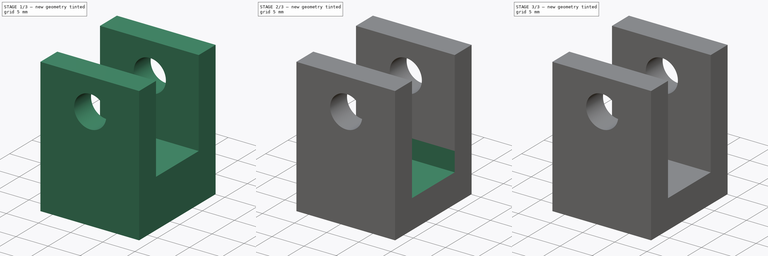
[diagram: build sequence overview — one tinted view per stage of 3, left to right]
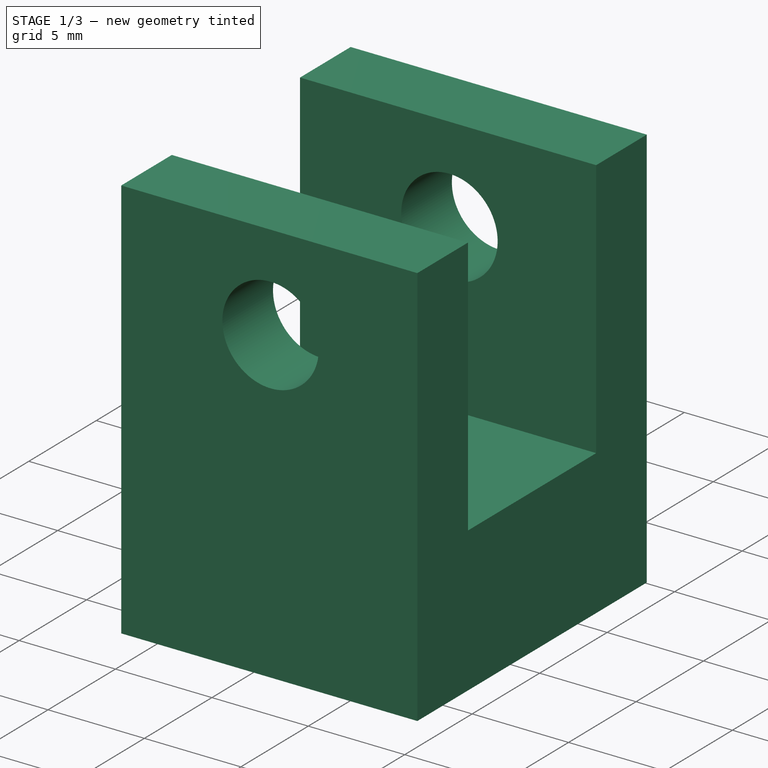
[diagram: stage 1 of 3 — iso view after this stage's code; geometry added in this stage tinted green]
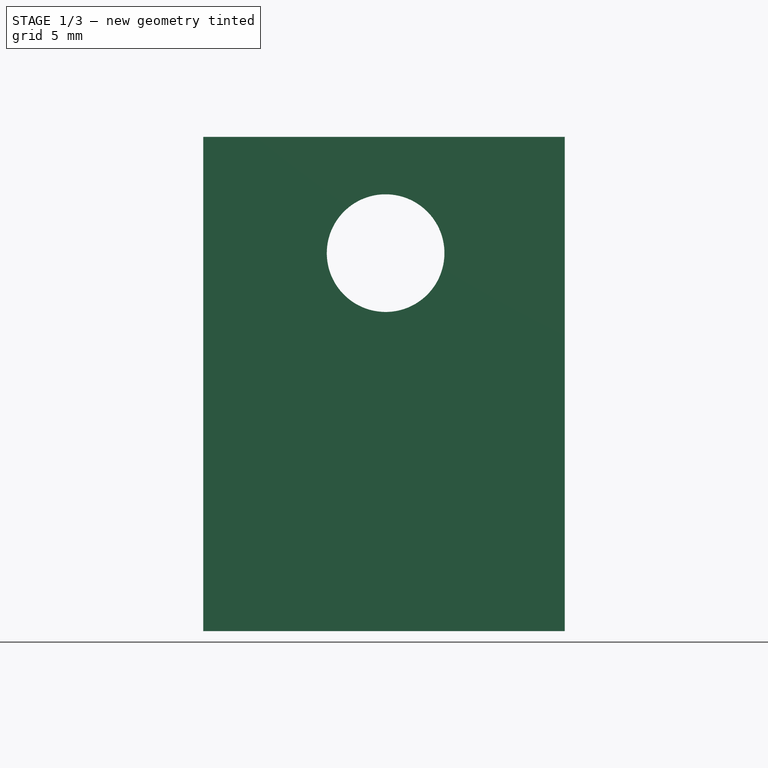
[diagram: stage 1 of 3 — front view after this stage's code; geometry added in this stage tinted green]
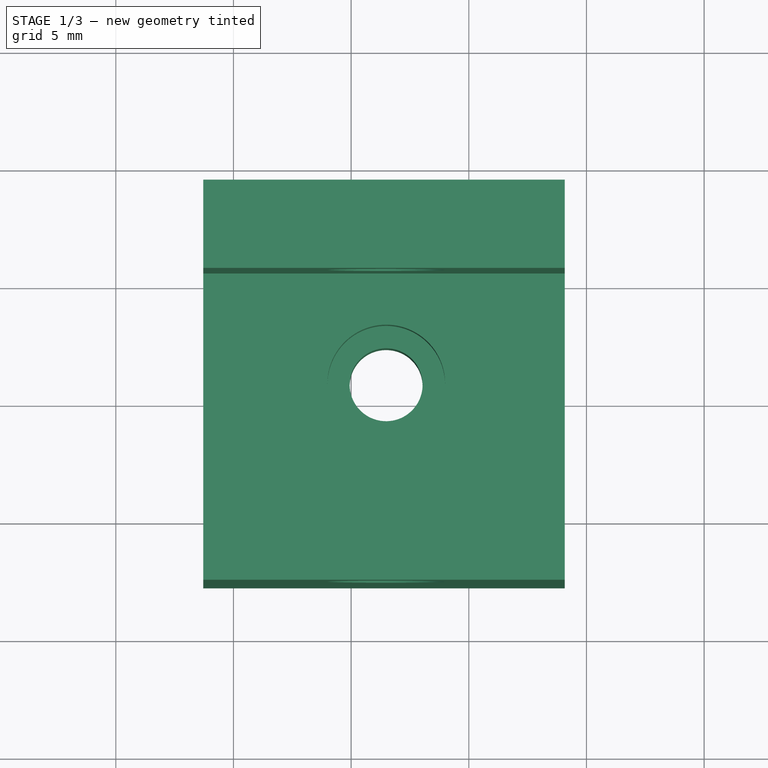
[diagram: stage 1 of 3 — top view after this stage's code; geometry added in this stage tinted green]
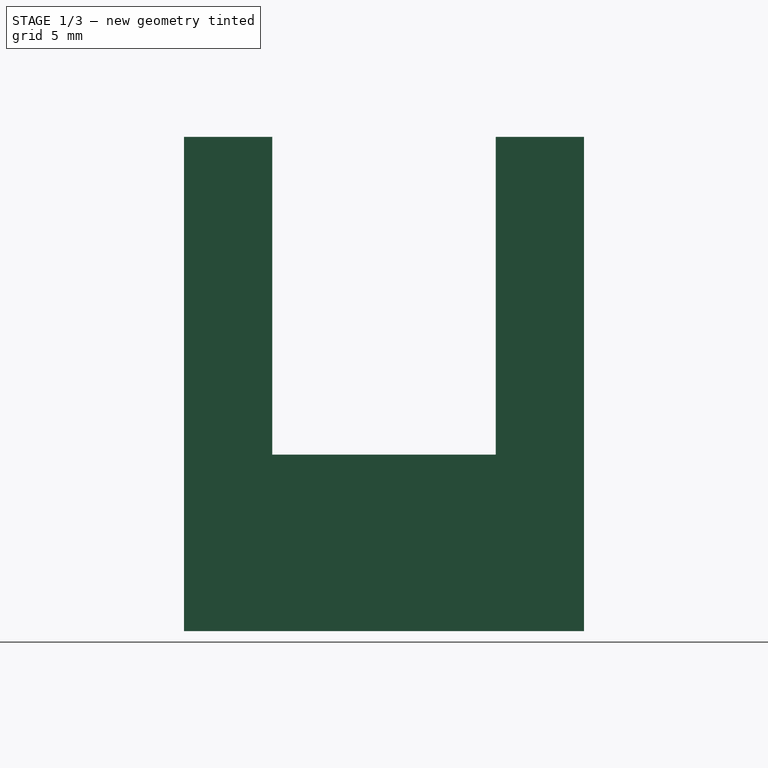
[diagram: stage 1 of 3 — right view after this stage's code; geometry added in this stage tinted green]
FCSTD DOCUMENT  (FreeCAD 2024.2R37179 (Git))
Label: idler_holder
License: All rights reserved
LicenseURL: http://en.wikipedia.org/wiki/All_rights_reserved
objects: PartDesign::Pocket×3, PartDesign::Pad×2, Part::Feature×1, PartDesign::FeatureBase×1, Sketcher::SketchObject×1, PartDesign::Body×1
note: 14 computed .brp shape members not serialized (recipe doc carries the construction recipe); baked Part::Feature solids carry a one-line shape summary decoded from their .brp

FEATURE [Part::Feature] Pocket020
  shape: bbox 15.36 x 17 x 18 mm, 20 faces (baked)
FEATURE [PartDesign::FeatureBase] BaseFeature
  BaseFeature = -> Pocket020
  Suppressed = false
FEATURE [PartDesign::Pad] Pad
  BaseFeature = -> BaseFeature
  Direction = (0,0,-1)
  Length = 3
  Length2 = 10
  Profile = -> BaseFeature [Face1]
  Suppressed = false
  Type = 0
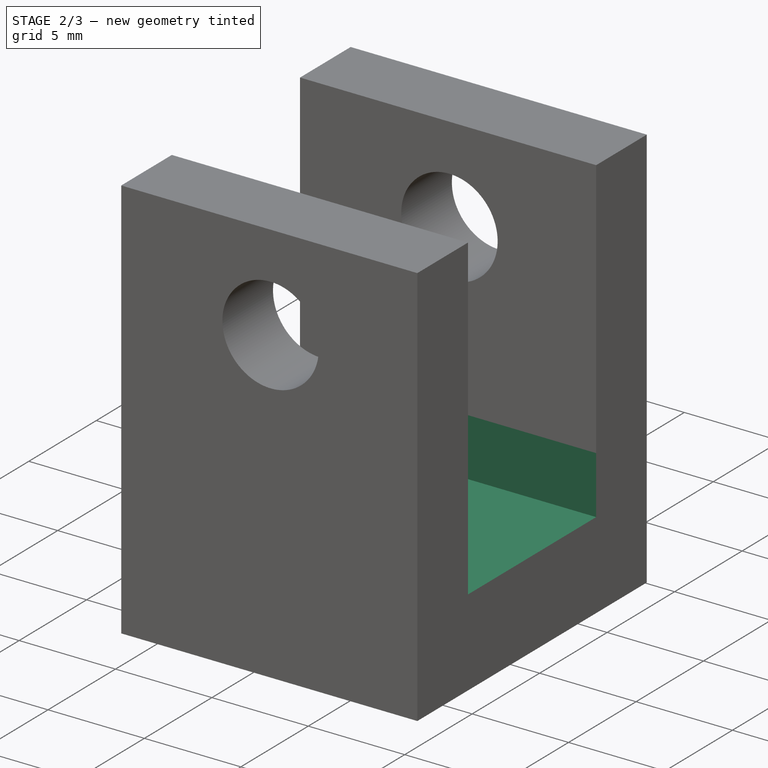
[diagram: stage 2 of 3 — iso view after this stage's code; geometry added in this stage tinted green]
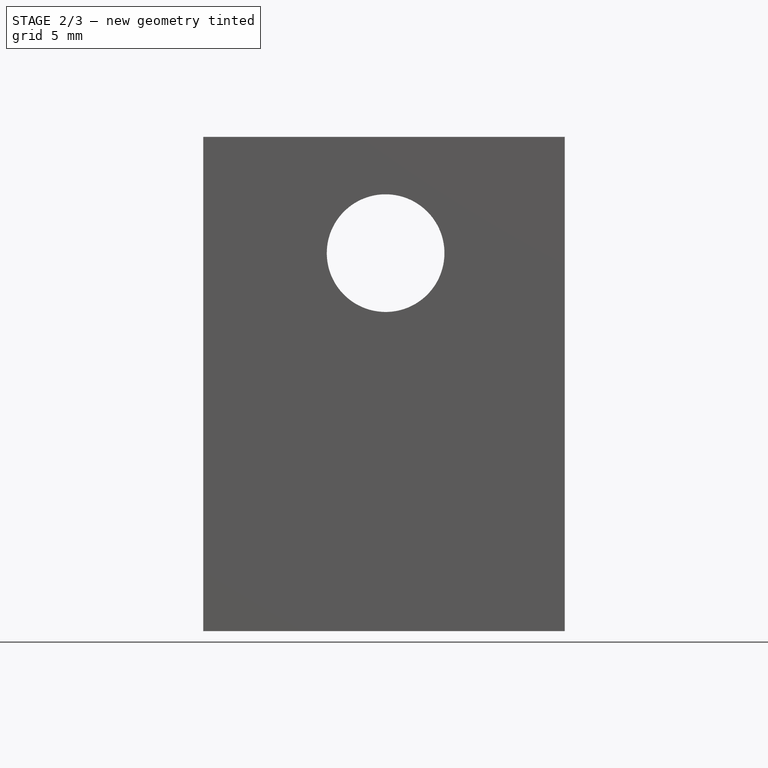
[diagram: stage 2 of 3 — front view after this stage's code; geometry added in this stage tinted green]
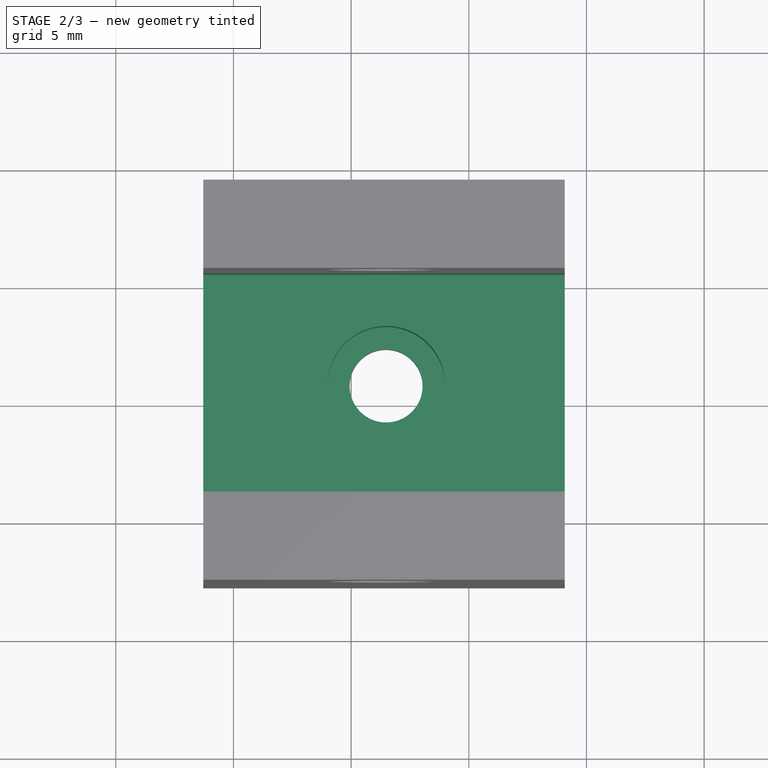
[diagram: stage 2 of 3 — top view after this stage's code; geometry added in this stage tinted green]
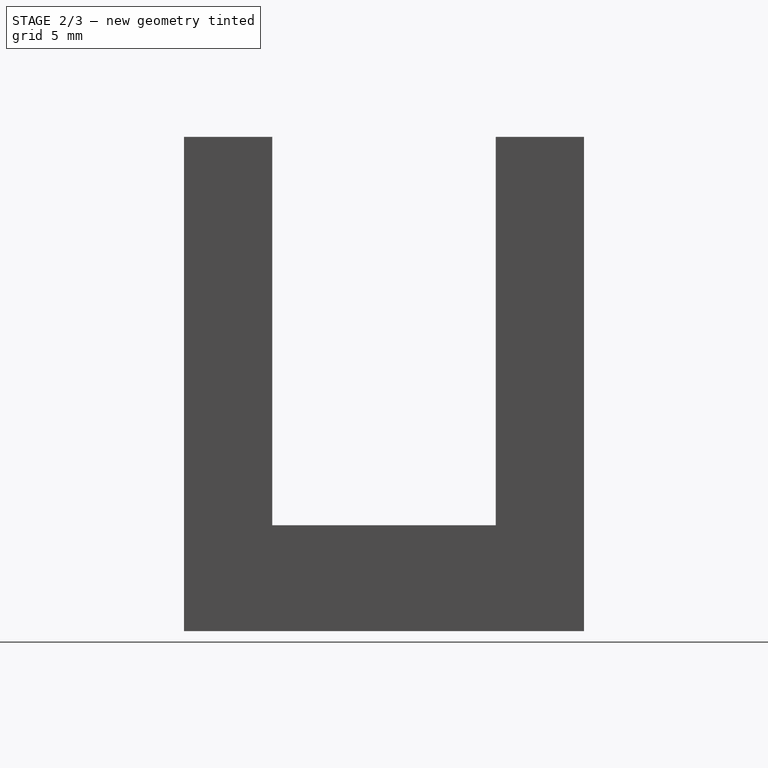
[diagram: stage 2 of 3 — right view after this stage's code; geometry added in this stage tinted green]
FEATURE [PartDesign::Pocket] Pocket
  BaseFeature = -> Pad
  Direction = (0,0,-1)
  Length = 3
  Length2 = 5
  Profile = -> Pad [Face5]
  Suppressed = false
  Type = 0
FEATURE [PartDesign::Pocket] Pocket021
  BaseFeature = -> Pocket
  Direction = (0,0,-1)
  Length = 3
  Length2 = 5
  Profile = -> Pocket [Face16]
  Suppressed = false
  Type = 0
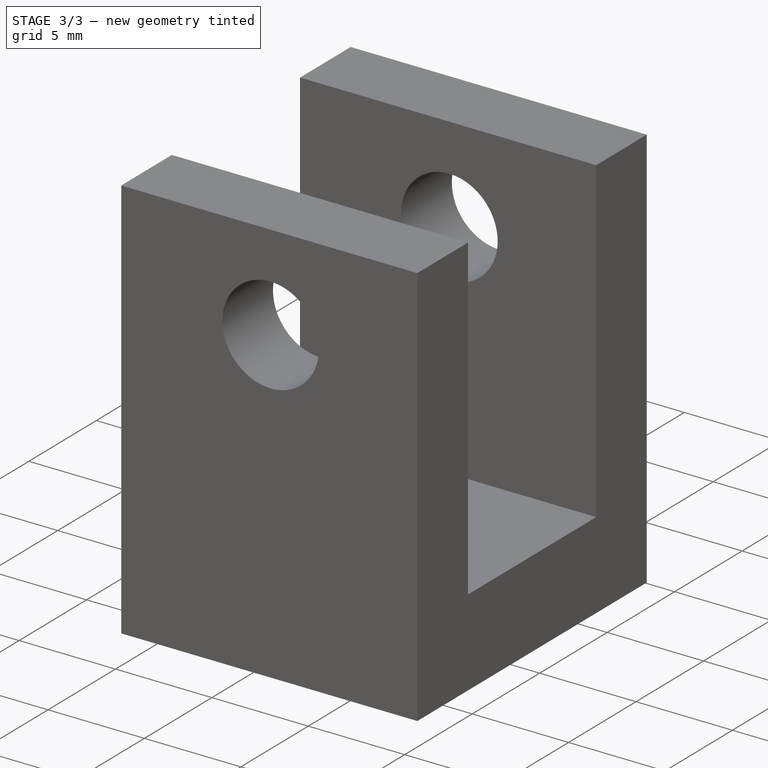
[diagram: stage 3 of 3 — iso view after this stage's code; geometry added in this stage tinted green]
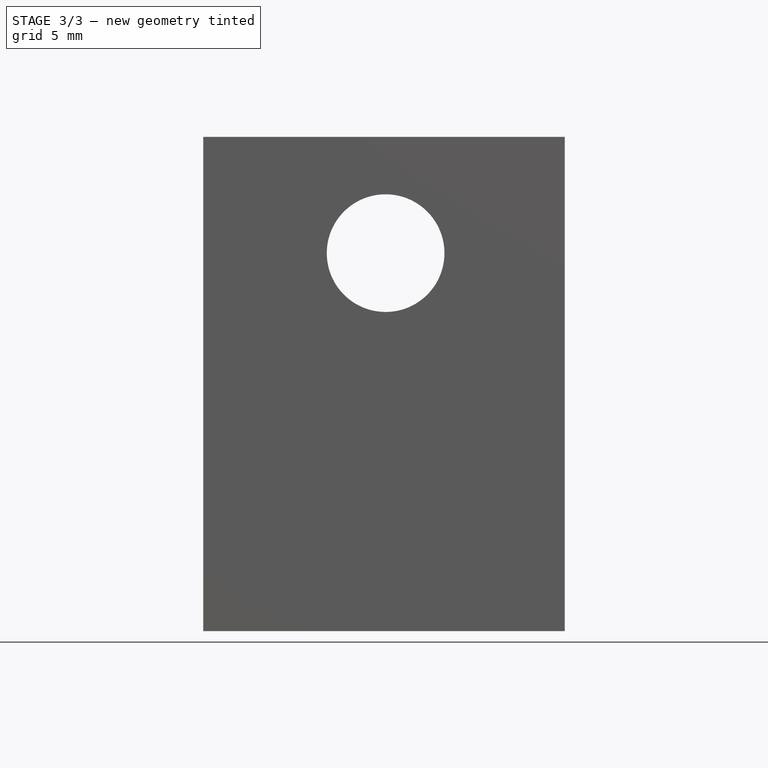
[diagram: stage 3 of 3 — front view after this stage's code; geometry added in this stage tinted green]
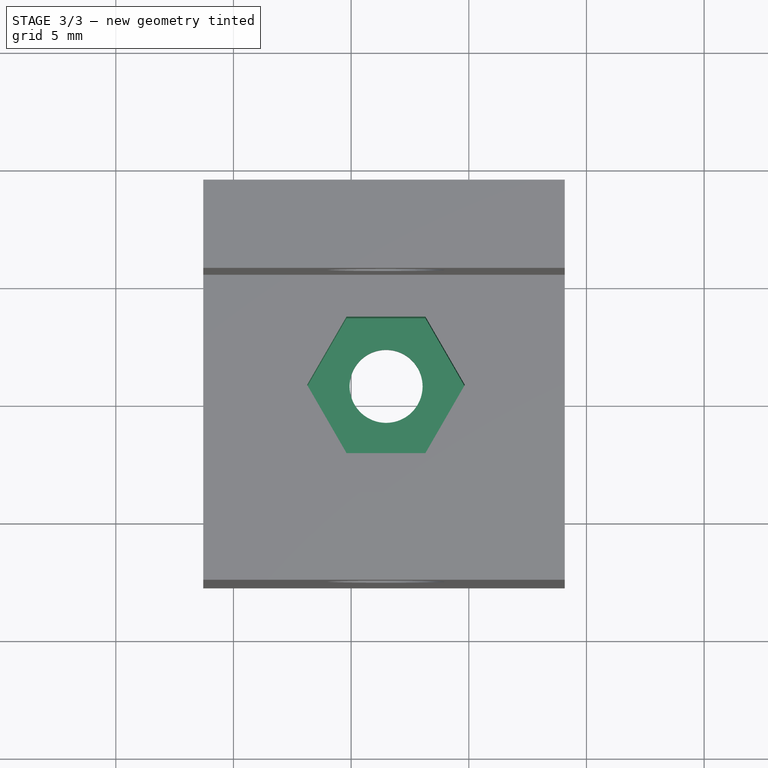
[diagram: stage 3 of 3 — top view after this stage's code; geometry added in this stage tinted green]
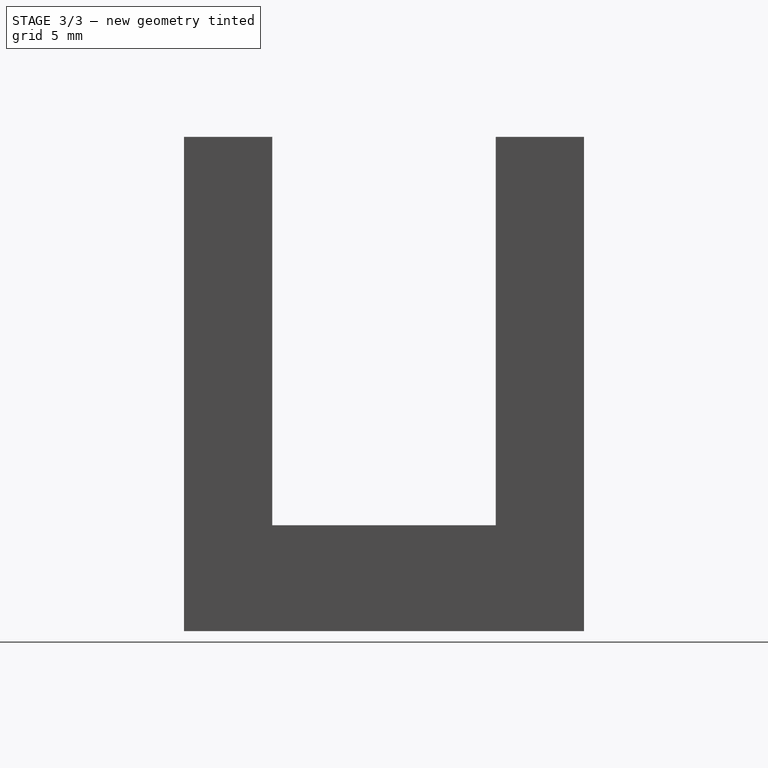
[diagram: stage 3 of 3 — right view after this stage's code; geometry added in this stage tinted green]
FEATURE [PartDesign::Pad] Pad001
  BaseFeature = -> Pocket021
  Direction = (0,0,1)
  Length = 10
  Length2 = 10
  Profile = -> Pocket021 [Face26]
  Refine = true
  Suppressed = false
  Type = 3
  UpToFace = -> Pocket021 [Face8]
FEATURE [Sketcher::SketchObject] Sketch
  AttachmentSupport = -> [Pad001]
  FullyConstrained = false
  MapMode = 5
  Placement = pos=(0,0,53.5) rot=(0,0,1;0rad)
  sketch-geometry (7):
    g0: LineSegment StartX=509.831 StartY=-209.174 StartZ=0 EndX=508.156 EndY=-206.273 EndZ=0
    g1: LineSegment StartX=508.156 StartY=-206.273 StartZ=0 EndX=504.806 EndY=-206.273 EndZ=0
    g2: LineSegment StartX=504.806 StartY=-206.273 StartZ=0 EndX=503.131 EndY=-209.174 EndZ=0
    g3: LineSegment StartX=503.131 StartY=-209.174 StartZ=0 EndX=504.806 EndY=-212.075 EndZ=0
    g4: LineSegment StartX=504.806 StartY=-212.075 StartZ=0 EndX=508.156 EndY=-212.075 EndZ=0
    g5: LineSegment StartX=508.156 StartY=-212.075 StartZ=0 EndX=509.831 EndY=-209.174 EndZ=0
    g6: Circle CenterX=506.481 CenterY=-209.174 CenterZ=0 NormalX=0 NormalY=0 NormalZ=1 AngleXU=0 Radius=3.35
  constraints (14):
    c: Coincident(g0,g1)
    c: Coincident(g1,g2)
    c: Coincident(g2,g3)
    c: Coincident(g3,g4)
    c: Coincident(g4,g5)
    c: Coincident(g5,g0)
    c: Equal(g0, g1-g5) x5
    c: PointOnObject(g0,g6)
    c: PointOnObject(g1,g6)
    c: PointOnObject(g2,g6)
    c: PointOnObject(g3,g6)
    c: PointOnObject(g4,g6)
    c: PointOnObject(g5,g6)
    c: Radius(g6) = 3.35
FEATURE [PartDesign::Pocket] Pocket022
  BaseFeature = -> Pad001
  Direction = (0,0,-1)
  Length = 4
  Length2 = 5
  Profile = -> Sketch
  ReferenceAxis = -> Sketch [N_Axis]
  Refine = true
  Suppressed = false
  Type = 0
FEATURE [PartDesign::Body] Body
  BaseFeature = -> Pocket020
  Group = -> [BaseFeature,Pad,Pocket,Pocket021,Pad001,Sketch,Pocket022]
  Origin = -> Origin
  Tip = -> Pocket022
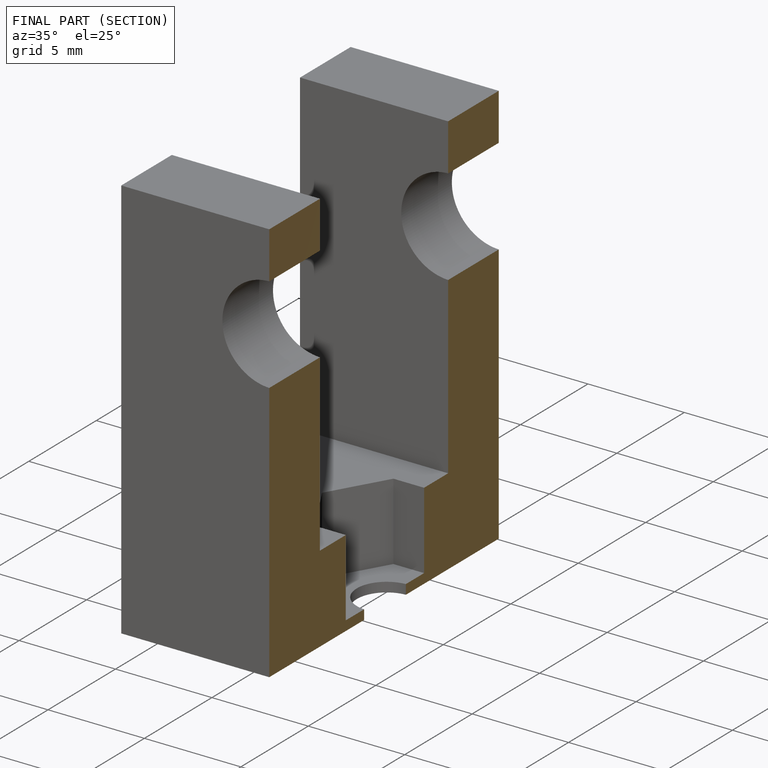
[diagram: finished part — half-section view (interior)]
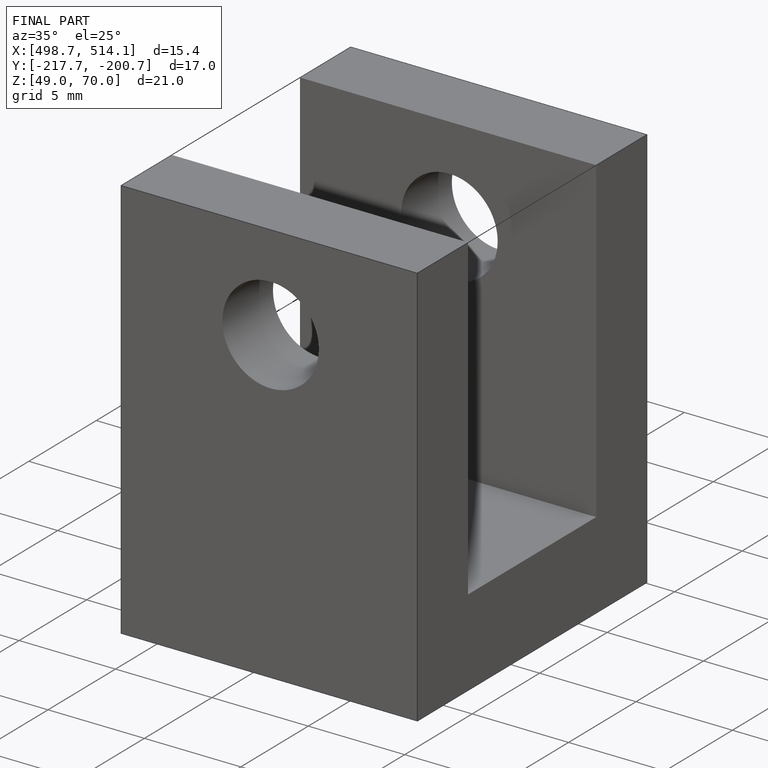
[diagram: finished part — iso view with bounding-box wireframe]
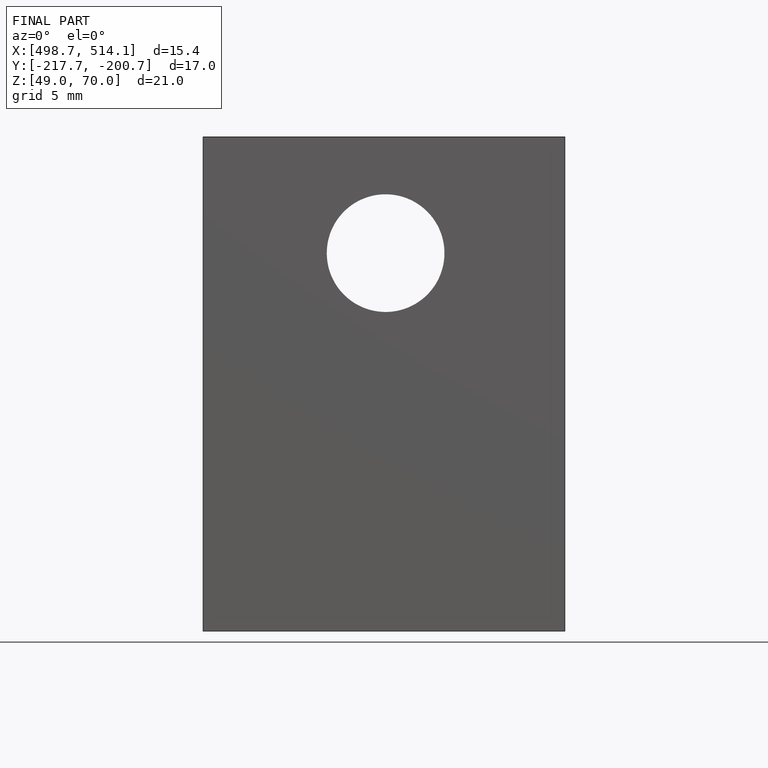
[diagram: finished part — front view with bounding-box wireframe]
